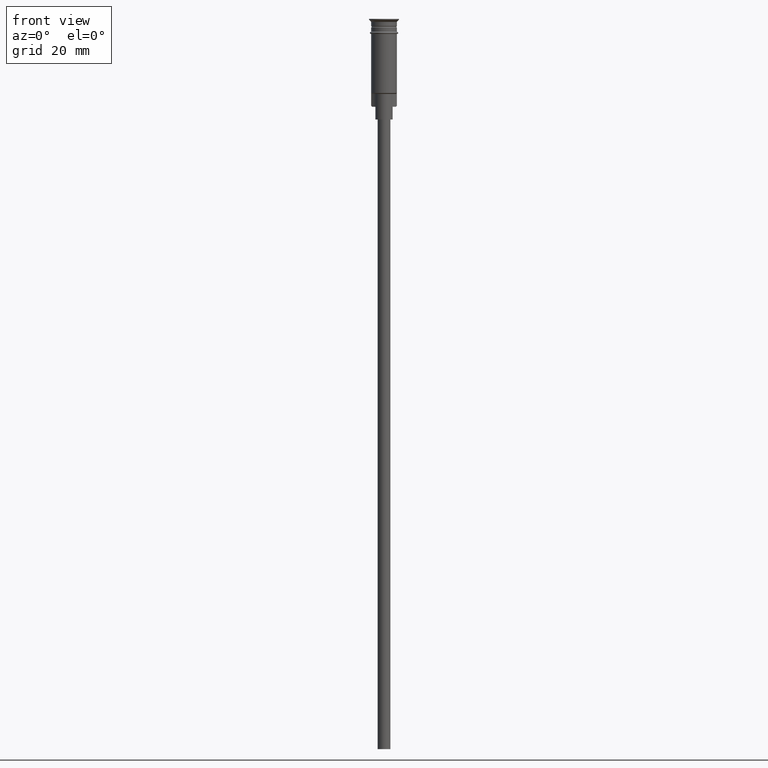
[diagram: clean part render]
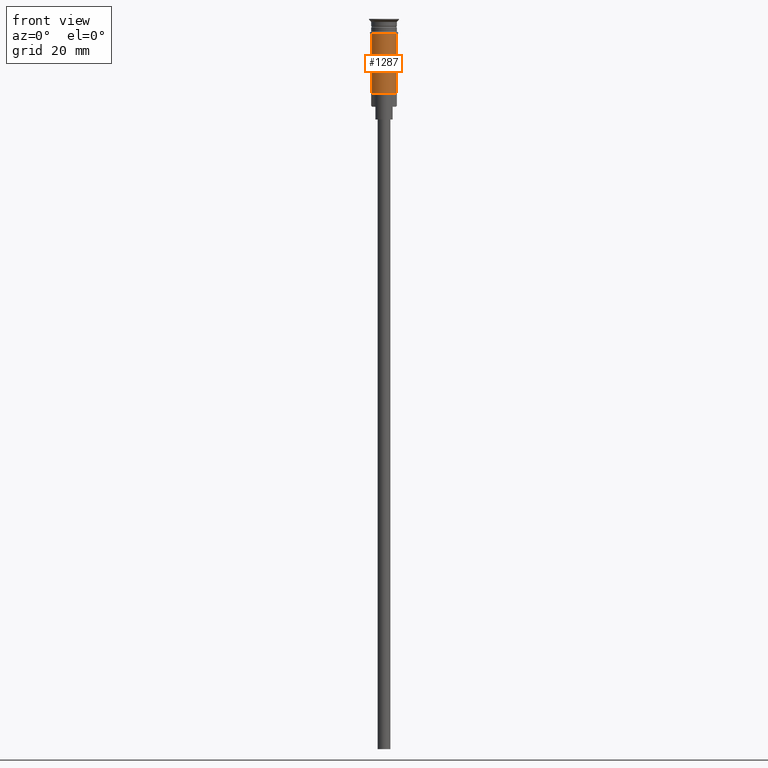
[diagram: same view with one face highlighted and labeled with its STEP entity id]
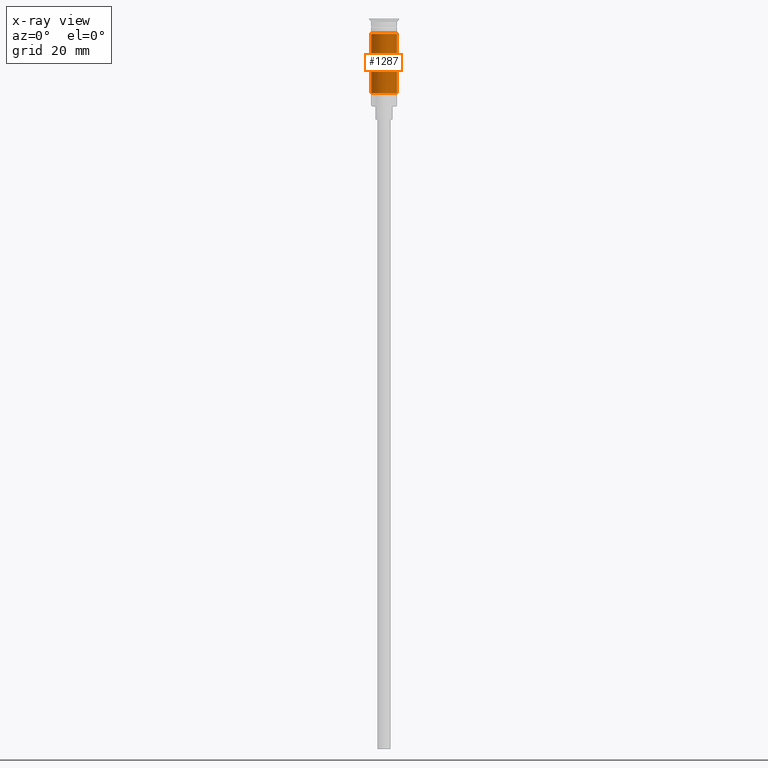
[diagram: x-ray of the same camera — body ghosted, the highlighted face saturated]
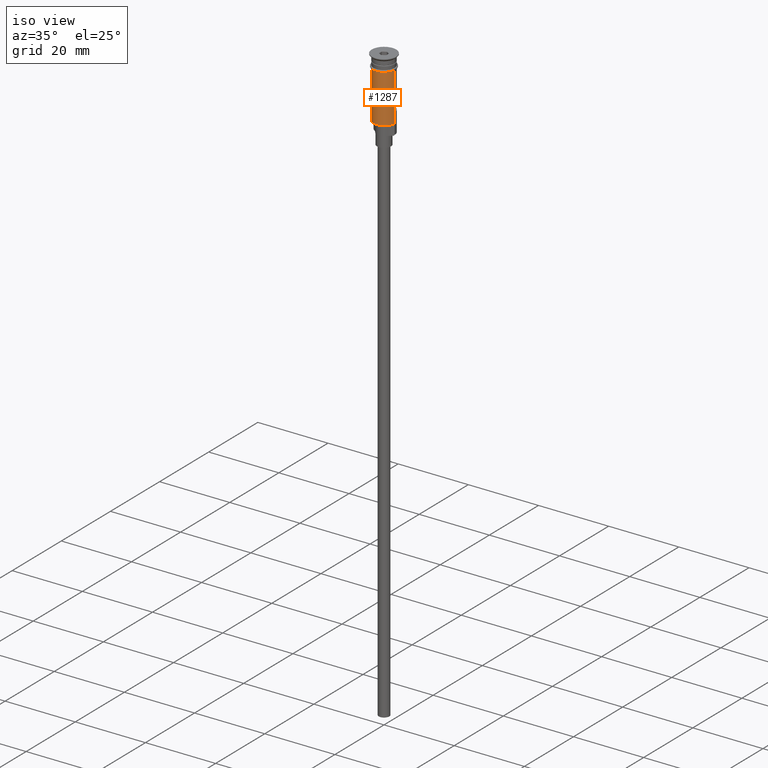
[diagram: same view with one face highlighted and labeled with its STEP entity id]
A machine part, front view. The second image highlights one B-rep face of the part: STEP entity #1287.
The next image is the same camera in x-ray: the body ghosted, the highlighted face saturated — about 0% of this face is hidden behind the body in this view.
A second angle (iso view) of the same face is appended — the face is thin or edge-on in the first view.
In plain terms, the highlighted cylindrical surface (edge-blend (fillet) strip) has radius 3 mm, axis along (-0, -0, 1).
Its self-contained STEP definition (entity closure, byte-faithful):
#3 = EDGE_CURVE ( 'NONE', #1278, #891, #1195, .T. ) ;
#79 = EDGE_LOOP ( 'NONE', ( #117, #856, #455, #1378 ) ) ;
#117 = ORIENTED_EDGE ( 'NONE', *, *, #852, .F. ) ;
#168 = FACE_OUTER_BOUND ( 'NONE', #79, .T. ) ;
#222 = DIRECTION ( 'NONE',  ( -0.000000000000000000, -0.000000000000000000, 1.000000000000000000 ) ) ;
#262 = DIRECTION ( 'NONE',  ( -0.000000000000000000, -0.000000000000000000, 1.000000000000000000 ) ) ;
#336 = VECTOR ( 'NONE', #648, 1000.000000000000000 ) ;
#407 = CARTESIAN_POINT ( 'NONE',  ( 2.999999999999996891, 3.673940397442055924E-16, -17.30000000000000782 ) ) ;
#414 = EDGE_CURVE ( 'NONE', #530, #1278, #1338, .T. ) ;
#418 = AXIS2_PLACEMENT_3D ( 'NONE', #652, #1512, #660 ) ;
#455 = ORIENTED_EDGE ( 'NONE', *, *, #3, .T. ) ;
#526 = CARTESIAN_POINT ( 'NONE',  ( -2.999999999999996891, 3.673940397442055924E-16, 0.000000000000000000 ) ) ;
#530 = VERTEX_POINT ( 'NONE', #787 ) ;
#593 = CARTESIAN_POINT ( 'NONE',  ( 0.000000000000000000, 0.000000000000000000, -3.499999999999998668 ) ) ;
#648 = DIRECTION ( 'NONE',  ( -0.000000000000000000, -0.000000000000000000, 1.000000000000000000 ) ) ;
#652 = CARTESIAN_POINT ( 'NONE',  ( 0.000000000000000000, 0.000000000000000000, 0.000000000000000000 ) ) ;
#660 = DIRECTION ( 'NONE',  ( 1.000000000000000000, 0.000000000000000000, 0.000000000000000000 ) ) ;
#692 = EDGE_CURVE ( 'NONE', #1567, #891, #1201, .T. ) ;
#757 = AXIS2_PLACEMENT_3D ( 'NONE', #997, #262, #1124 ) ;
#787 = CARTESIAN_POINT ( 'NONE',  ( -2.999999999999995115, 0.000000000000000000, -17.30000000000000782 ) ) ;
#820 = DIRECTION ( 'NONE',  ( 1.000000000000000000, 0.000000000000000000, 0.000000000000000000 ) ) ;
#852 = EDGE_CURVE ( 'NONE', #530, #1567, #1382, .T. ) ;
#856 = ORIENTED_EDGE ( 'NONE', *, *, #414, .T. ) ;
#891 = VERTEX_POINT ( 'NONE', #1485 ) ;
#919 = CARTESIAN_POINT ( 'NONE',  ( -2.999999999999999112, 3.673940397442058389E-16, -3.499999999999998668 ) ) ;
#997 = CARTESIAN_POINT ( 'NONE',  ( 0.000000000000000000, 0.000000000000000000, -17.30000000000000782 ) ) ;
#1053 = DIRECTION ( 'NONE',  ( -0.000000000000000000, -0.000000000000000000, 1.000000000000000000 ) ) ;
#1124 = DIRECTION ( 'NONE',  ( -1.000000000000000000, 0.000000000000000000, 0.000000000000000000 ) ) ;
#1125 = CYLINDRICAL_SURFACE ( 'NONE', #418, 2.999999999999996891 ) ;
#1195 = LINE ( 'NONE', #1565, #1356 ) ;
#1201 = CIRCLE ( 'NONE', #1541, 2.999999999999998668 ) ;
#1278 = VERTEX_POINT ( 'NONE', #407 ) ;
#1287 = ADVANCED_FACE ( 'NONE', ( #168 ), #1125, .T. ) ;
#1338 = CIRCLE ( 'NONE', #757, 2.999999999999996891 ) ;
#1356 = VECTOR ( 'NONE', #1053, 1000.000000000000000 ) ;
#1378 = ORIENTED_EDGE ( 'NONE', *, *, #692, .F. ) ;
#1382 = LINE ( 'NONE', #526, #336 ) ;
#1485 = CARTESIAN_POINT ( 'NONE',  ( 2.999999999999998668, 0.000000000000000000, -3.499999999999998668 ) ) ;
#1512 = DIRECTION ( 'NONE',  ( -0.000000000000000000, -0.000000000000000000, 1.000000000000000000 ) ) ;
#1541 = AXIS2_PLACEMENT_3D ( 'NONE', #593, #222, #820 ) ;
#1565 = CARTESIAN_POINT ( 'NONE',  ( 2.999999999999996891, 0.000000000000000000, 0.000000000000000000 ) ) ;
#1567 = VERTEX_POINT ( 'NONE', #919 ) ;